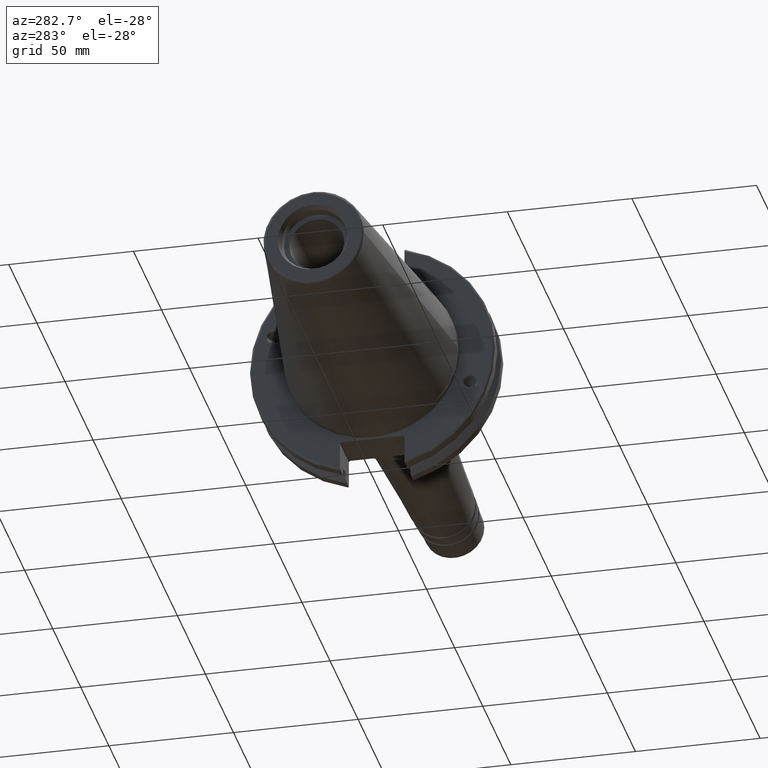
[diagram: clean part render]
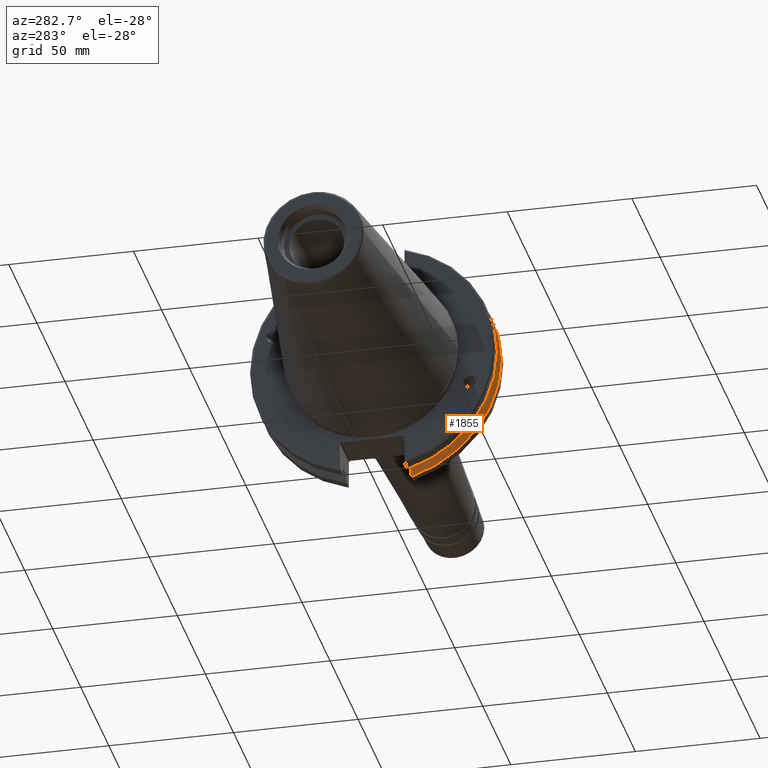
[diagram: same view with one face highlighted and labeled with its STEP entity id]
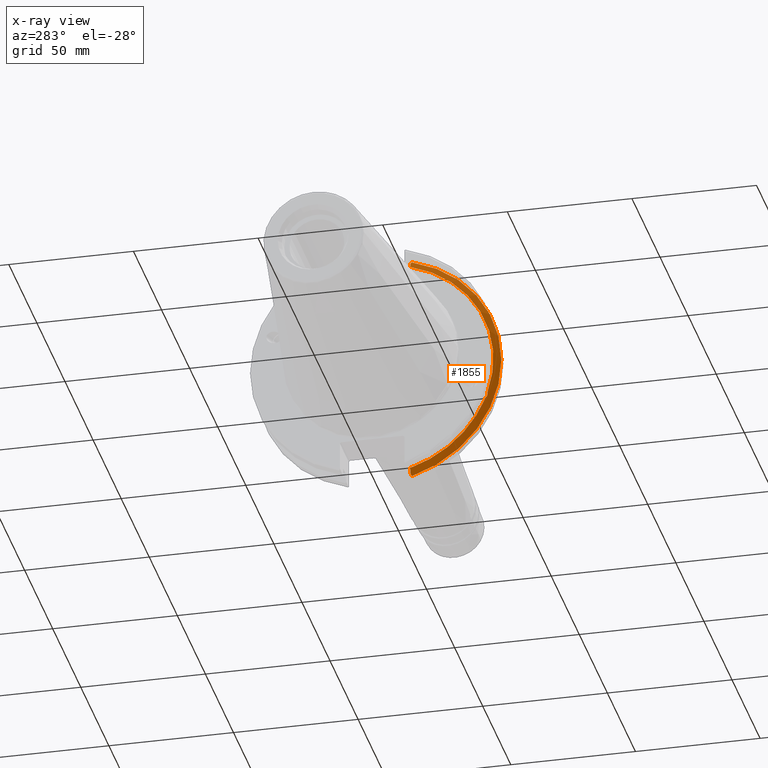
[diagram: x-ray of the same camera — body ghosted, the highlighted face saturated]
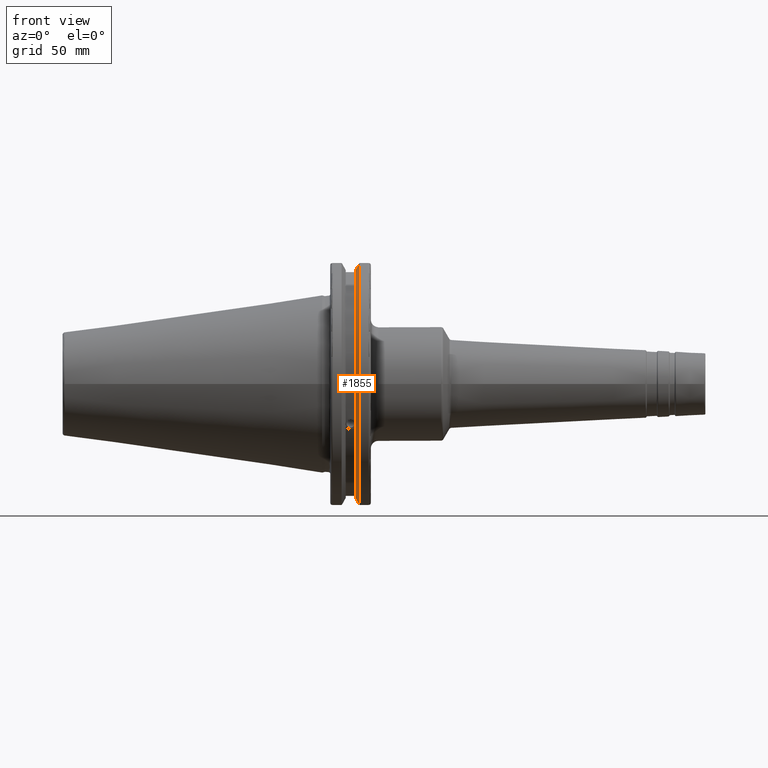
[diagram: same view with one face highlighted and labeled with its STEP entity id]
A machine part, auxiliary view. The second image highlights one B-rep face of the part: STEP entity #1855.
The next image is the same camera in x-ray: the body ghosted, the highlighted face saturated — about 0% of this face is hidden behind the body in this view.
A second angle (front view) of the same face is appended — the face is thin or edge-on in the first view.
In plain terms, the highlighted conical surface has half-angle 60 deg.
Its self-contained STEP definition (entity closure, byte-faithful):
#15=(
BOUNDED_CURVE()
B_SPLINE_CURVE(2,(#3229,#3230,#3231),.UNSPECIFIED.,.F.,.F.)
B_SPLINE_CURVE_WITH_KNOTS((3,3),(0.,0.275823910673374),.UNSPECIFIED.)
CURVE()
GEOMETRIC_REPRESENTATION_ITEM()
RATIONAL_B_SPLINE_CURVE((1.,1.00038235574978,1.00012873636953))
REPRESENTATION_ITEM('')
);
#16=(
BOUNDED_CURVE()
B_SPLINE_CURVE(2,(#3233,#3234,#3235),.UNSPECIFIED.,.F.,.F.)
B_SPLINE_CURVE_WITH_KNOTS((3,3),(0.,0.0648240472896156),.UNSPECIFIED.)
CURVE()
GEOMETRIC_REPRESENTATION_ITEM()
RATIONAL_B_SPLINE_CURVE((1.,1.00011477674884,1.00019140646027))
REPRESENTATION_ITEM('')
);
#17=(
BOUNDED_CURVE()
B_SPLINE_CURVE(2,(#3239,#3240,#3241),.UNSPECIFIED.,.F.,.F.)
B_SPLINE_CURVE_WITH_KNOTS((3,3),(0.325260944932494,0.3900849922222),
 .UNSPECIFIED.)
CURVE()
GEOMETRIC_REPRESENTATION_ITEM()
RATIONAL_B_SPLINE_CURVE((1.00019140645961,1.00011477674844,1.))
REPRESENTATION_ITEM('')
);
#18=(
BOUNDED_CURVE()
B_SPLINE_CURVE(2,(#3243,#3244,#3245),.UNSPECIFIED.,.F.,.F.)
B_SPLINE_CURVE_WITH_KNOTS((3,3),(0.0558332664531015,0.331657177124503),
 .UNSPECIFIED.)
CURVE()
GEOMETRIC_REPRESENTATION_ITEM()
RATIONAL_B_SPLINE_CURVE((1.00012873636668,1.00038235574129,1.))
REPRESENTATION_ITEM('')
);
#41=B_SPLINE_CURVE_WITH_KNOTS('',3,(#3139,#3140,#3141,#3142,#3143,#3144,
#3145,#3146),.UNSPECIFIED.,.F.,.F.,(4,2,2,4),(0.42671286835872,0.441644498666905,
0.480313313223129,0.518982127779353),.UNSPECIFIED.);
#45=B_SPLINE_CURVE_WITH_KNOTS('',3,(#3201,#3202,#3203,#3204,#3205,#3206,
#3207,#3208),.UNSPECIFIED.,.F.,.F.,(4,2,2,4),(0.518982127779353,0.557650942335576,
0.5963197568918,0.611251387199985),.UNSPECIFIED.);
#83=CONICAL_SURFACE('',#2063,47.8172386482472,1.0471975511966);
#426=FACE_OUTER_BOUND('',#543,.T.);
#543=EDGE_LOOP('',(#1452,#1453,#1454,#1455,#1456,#1457,#1458,#1459,#1460));
#696=CIRCLE('',#2064,46.4219772964944);
#697=CIRCLE('',#2065,49.2125);
#698=CIRCLE('',#2066,46.4219772964944);
#825=VERTEX_POINT('',#3136);
#826=VERTEX_POINT('',#3138);
#833=VERTEX_POINT('',#3199);
#839=VERTEX_POINT('',#3226);
#840=VERTEX_POINT('',#3228);
#841=VERTEX_POINT('',#3232);
#842=VERTEX_POINT('',#3236);
#843=VERTEX_POINT('',#3238);
#844=VERTEX_POINT('',#3242);
#1048=EDGE_CURVE('',#826,#825,#41,.T.);
#1056=EDGE_CURVE('',#825,#833,#45,.T.);
#1064=EDGE_CURVE('',#833,#839,#696,.T.);
#1065=EDGE_CURVE('',#839,#840,#15,.T.);
#1066=EDGE_CURVE('',#841,#840,#16,.T.);
#1067=EDGE_CURVE('',#842,#841,#697,.T.);
#1068=EDGE_CURVE('',#843,#842,#17,.T.);
#1069=EDGE_CURVE('',#843,#844,#18,.T.);
#1070=EDGE_CURVE('',#844,#826,#698,.T.);
#1452=ORIENTED_EDGE('',*,*,#1048,.T.);
#1453=ORIENTED_EDGE('',*,*,#1056,.T.);
#1454=ORIENTED_EDGE('',*,*,#1064,.T.);
#1455=ORIENTED_EDGE('',*,*,#1065,.T.);
#1456=ORIENTED_EDGE('',*,*,#1066,.F.);
#1457=ORIENTED_EDGE('',*,*,#1067,.F.);
#1458=ORIENTED_EDGE('',*,*,#1068,.F.);
#1459=ORIENTED_EDGE('',*,*,#1069,.T.);
#1460=ORIENTED_EDGE('',*,*,#1070,.T.);
#1855=ADVANCED_FACE('',(#426),#83,.T.);
#2063=AXIS2_PLACEMENT_3D('',#3225,#2456,#2457);
#2064=AXIS2_PLACEMENT_3D('',#3227,#2458,#2459);
#2065=AXIS2_PLACEMENT_3D('',#3237,#2460,#2461);
#2066=AXIS2_PLACEMENT_3D('',#3246,#2462,#2463);
#2456=DIRECTION('center_axis',(1.,0.,0.));
#2457=DIRECTION('ref_axis',(0.,-1.,-1.22464679914735E-16));
#2458=DIRECTION('center_axis',(1.,0.,0.));
#2459=DIRECTION('ref_axis',(0.,0.,-1.));
#2460=DIRECTION('center_axis',(1.,0.,0.));
#2461=DIRECTION('ref_axis',(0.,0.,-1.));
#2462=DIRECTION('center_axis',(1.,0.,0.));
#2463=DIRECTION('ref_axis',(0.,0.,-1.));
#3136=CARTESIAN_POINT('',(13.2341,-43.923494649906,-15.9868446375166));
#3138=CARTESIAN_POINT('',(13.0491,-43.9096390749305,-15.0646464421033));
#3139=CARTESIAN_POINT('Ctrl Pts',(13.0491,-43.9096390749305,-15.0646464421033));
#3140=CARTESIAN_POINT('Ctrl Pts',(13.0660815609661,-43.9250360001461,-15.1104047527575));
#3141=CARTESIAN_POINT('Ctrl Pts',(13.0821132459668,-43.9385582852181,-15.1564111356409));
#3142=CARTESIAN_POINT('Ctrl Pts',(13.1358132615496,-43.9797830409459,-15.3217566390708));
#3143=CARTESIAN_POINT('Ctrl Pts',(13.1719838933644,-43.9989016655819,-15.4570249042868));
#3144=CARTESIAN_POINT('Ctrl Pts',(13.2212913174802,-43.9931221605126,-15.7289849146254));
#3145=CARTESIAN_POINT('Ctrl Pts',(13.2341,-43.9675796948952,-15.8657219718732));
#3146=CARTESIAN_POINT('Ctrl Pts',(13.2341,-43.923494649906,-15.9868446375166));
#3199=CARTESIAN_POINT('',(13.0491,-43.3201030900029,-16.6843832486479));
#3201=CARTESIAN_POINT('Ctrl Pts',(13.2341,-43.923494649906,-15.9868446375166));
#3202=CARTESIAN_POINT('Ctrl Pts',(13.2341,-43.8794096049169,-16.10796730316));
#3203=CARTESIAN_POINT('Ctrl Pts',(13.2212913174802,-43.8110833825827,-16.2291323464527));
#3204=CARTESIAN_POINT('Ctrl Pts',(13.1719838933644,-43.6406982153492,-16.441180795372));
#3205=CARTESIAN_POINT('Ctrl Pts',(13.1358132615496,-43.5391037343221,-16.5325130832406));
#3206=CARTESIAN_POINT('Ctrl Pts',(13.0821132459668,-43.4012416983557,-16.6326763251437));
#3207=CARTESIAN_POINT('Ctrl Pts',(13.0660815609661,-43.3613106941341,-16.6592273018006));
#3208=CARTESIAN_POINT('Ctrl Pts',(13.0491,-43.3201030900029,-16.6843832486479));
#3225=CARTESIAN_POINT('Origin',(13.8546545170244,0.,0.));
#3226=CARTESIAN_POINT('',(13.0491,-12.95,-44.5791147973604));
#3227=CARTESIAN_POINT('Origin',(13.0491,0.,0.));
#3228=CARTESIAN_POINT('',(14.3818103943757,-12.95,-46.9780755322917));
#3229=CARTESIAN_POINT('Ctrl Pts',(13.0491,-12.95,-44.5791147973604));
#3230=CARTESIAN_POINT('Ctrl Pts',(13.697995509466,-12.95,-45.749496680259));
#3231=CARTESIAN_POINT('Ctrl Pts',(14.3818103943757,-12.95,-46.9780755322917));
#3232=CARTESIAN_POINT('',(14.6602090340487,-13.4317035994433,-47.3440544806494));
#3233=CARTESIAN_POINT('Ctrl Pts',(14.6602090340487,-13.4317035994433,-47.3440544806494));
#3234=CARTESIAN_POINT('Ctrl Pts',(14.5199310333617,-13.1896660169964,-47.1601640966263));
#3235=CARTESIAN_POINT('Ctrl Pts',(14.3818103943757,-12.95,-46.9780755322917));
#3236=CARTESIAN_POINT('',(14.6602090340487,-13.4317035994433,47.3440544806494));
#3237=CARTESIAN_POINT('Origin',(14.6602090340487,0.,0.));
#3238=CARTESIAN_POINT('',(14.3818103943757,-12.95,46.9780755322918));
#3239=CARTESIAN_POINT('Ctrl Pts',(14.3818103943757,-12.95,46.9780755322918));
#3240=CARTESIAN_POINT('Ctrl Pts',(14.5199310333617,-13.1896660169966,47.1601640966264));
#3241=CARTESIAN_POINT('Ctrl Pts',(14.6602090340487,-13.4317035994433,47.3440544806494));
#3242=CARTESIAN_POINT('',(13.0491,-12.95,44.5791147973604));
#3243=CARTESIAN_POINT('Ctrl Pts',(14.3818103943757,-12.95,46.9780755322918));
#3244=CARTESIAN_POINT('Ctrl Pts',(13.6979955094846,-12.95,45.7494966802924));
#3245=CARTESIAN_POINT('Ctrl Pts',(13.0491,-12.95,44.5791147973604));
#3246=CARTESIAN_POINT('Origin',(13.0491,0.,0.));